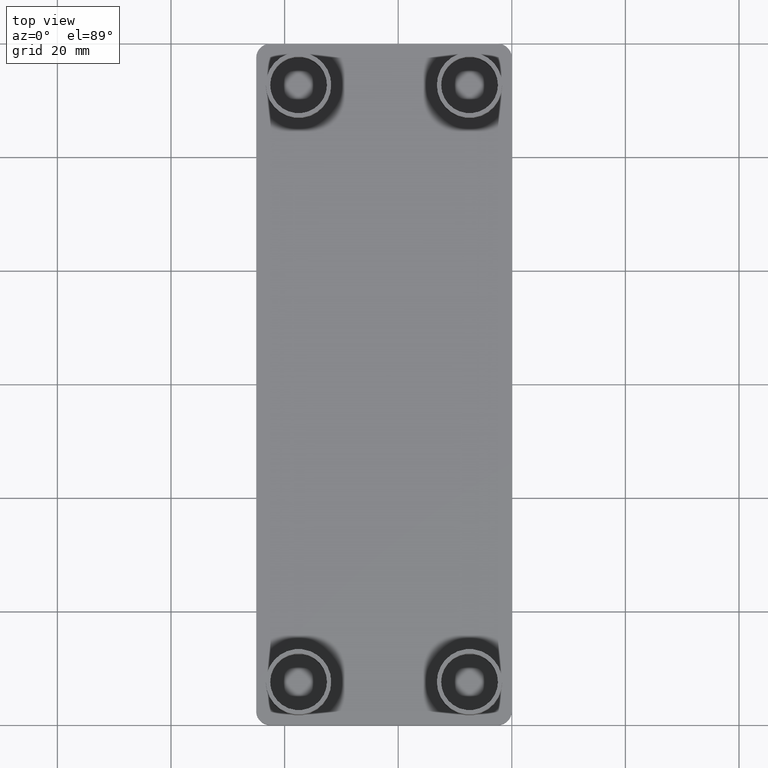
[diagram: clean part render]
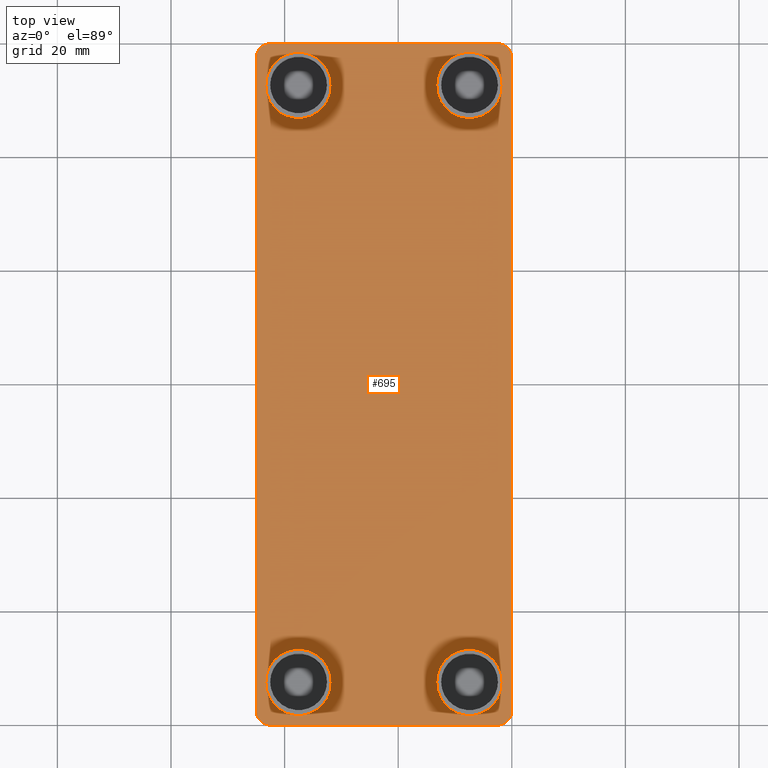
[diagram: same view with one face highlighted and labeled with its STEP entity id]
A machine part, top view. The second image highlights one B-rep face of the part: STEP entity #695.
In plain terms, the highlighted planar face has unit normal (0, 0, 1).
Its self-contained STEP definition (entity closure, byte-faithful):
#129=CARTESIAN_POINT('',(-31.800000666542019,52.550045499789803,0.0));
#130=VERTEX_POINT('',#129);
#137=CARTESIAN_POINT('',(-43.300000666495826,52.550045499789803,0.0));
#138=VERTEX_POINT('',#137);
#139=CARTESIAN_POINT('',(-37.550000666518827,52.550045499789803,0.0));
#140=DIRECTION('',(0.0,0.0,1.0));
#141=DIRECTION('',(1.0,0.0,0.0));
#142=AXIS2_PLACEMENT_3D('',#139,#140,#141);
#143=CIRCLE('',#142,5.749999999977001);
#144=EDGE_CURVE('',#130,#138,#143,.T.);
#146=CARTESIAN_POINT('',(-37.550000666518827,52.550045499789803,0.0));
#147=DIRECTION('',(0.0,0.0,1.0));
#148=DIRECTION('',(1.0,0.0,0.0));
#149=AXIS2_PLACEMENT_3D('',#146,#147,#148);
#150=CIRCLE('',#149,5.749999999977001);
#151=EDGE_CURVE('',#138,#130,#150,.T.);
#229=CARTESIAN_POINT('',(-1.700000666662618,52.550000499789803,0.0));
#230=VERTEX_POINT('',#229);
#237=CARTESIAN_POINT('',(-13.200000666616425,52.550000499789803,0.0));
#238=VERTEX_POINT('',#237);
#239=CARTESIAN_POINT('',(-7.450000666639426,52.550000499789803,0.0));
#240=DIRECTION('',(0.0,0.0,1.0));
#241=DIRECTION('',(1.0,0.0,0.0));
#242=AXIS2_PLACEMENT_3D('',#239,#240,#241);
#243=CIRCLE('',#242,5.749999999977001);
#244=EDGE_CURVE('',#230,#238,#243,.T.);
#246=CARTESIAN_POINT('',(-7.450000666639426,52.550000499789803,0.0));
#247=DIRECTION('',(0.0,0.0,1.0));
#248=DIRECTION('',(1.0,0.0,0.0));
#249=AXIS2_PLACEMENT_3D('',#246,#247,#248);
#250=CIRCLE('',#249,5.749999999977001);
#251=EDGE_CURVE('',#238,#230,#250,.T.);
#329=CARTESIAN_POINT('',(-31.799998999872514,-52.550044499789919,0.0));
#330=VERTEX_POINT('',#329);
#337=CARTESIAN_POINT('',(-43.299998999826322,-52.550044499789919,0.0));
#338=VERTEX_POINT('',#337);
#339=CARTESIAN_POINT('',(-37.549998999849322,-52.550044499789919,0.0));
#340=DIRECTION('',(0.0,0.0,1.0));
#341=DIRECTION('',(1.0,0.0,0.0));
#342=AXIS2_PLACEMENT_3D('',#339,#340,#341);
#343=CIRCLE('',#342,5.749999999977001);
#344=EDGE_CURVE('',#330,#338,#343,.T.);
#346=CARTESIAN_POINT('',(-37.549998999849322,-52.550044499789919,0.0));
#347=DIRECTION('',(0.0,0.0,1.0));
#348=DIRECTION('',(1.0,0.0,0.0));
#349=AXIS2_PLACEMENT_3D('',#346,#347,#348);
#350=CIRCLE('',#349,5.749999999977001);
#351=EDGE_CURVE('',#338,#330,#350,.T.);
#429=CARTESIAN_POINT('',(-1.699998999993113,-52.550044499789919,0.0));
#430=VERTEX_POINT('',#429);
#437=CARTESIAN_POINT('',(-13.199998999946921,-52.550044499789919,0.0));
#438=VERTEX_POINT('',#437);
#439=CARTESIAN_POINT('',(-7.449998999969921,-52.550044499789919,0.0));
#440=DIRECTION('',(0.0,0.0,1.0));
#441=DIRECTION('',(1.0,0.0,0.0));
#442=AXIS2_PLACEMENT_3D('',#439,#440,#441);
#443=CIRCLE('',#442,5.749999999977001);
#444=EDGE_CURVE('',#430,#438,#443,.T.);
#446=CARTESIAN_POINT('',(-7.449998999969921,-52.550044499789919,0.0));
#447=DIRECTION('',(0.0,0.0,1.0));
#448=DIRECTION('',(1.0,0.0,0.0));
#449=AXIS2_PLACEMENT_3D('',#446,#447,#448);
#450=CIRCLE('',#449,5.749999999977001);
#451=EDGE_CURVE('',#438,#430,#450,.T.);
#587=CARTESIAN_POINT('',(-44.999953999819809,57.500000499760063,0.0));
#588=VERTEX_POINT('',#587);
#589=CARTESIAN_POINT('',(-42.499953999819809,60.000000499760063,0.0));
#590=VERTEX_POINT('',#589);
#591=CARTESIAN_POINT('',(-42.499953999819809,57.500000499760063,0.0));
#592=DIRECTION('',(0.0,0.0,-1.0));
#593=DIRECTION('',(-1.0,0.0,0.0));
#594=AXIS2_PLACEMENT_3D('',#591,#592,#593);
#595=CIRCLE('',#594,2.500000000000000);
#596=EDGE_CURVE('',#588,#590,#595,.T.);
#614=CARTESIAN_POINT('',(-49.499975822407123,-72.000025978629537,0.0));
#615=DIRECTION('',(0.0,0.0,1.0));
#616=DIRECTION('',(1.0,0.0,0.0));
#617=AXIS2_PLACEMENT_3D('',#614,#615,#616);
#618=PLANE('',#617);
#619=CARTESIAN_POINT('',(-42.499953999819809,-60.000000499759835,0.0));
#620=VERTEX_POINT('',#619);
#621=CARTESIAN_POINT('',(-2.500000000000000,-60.000000499759835,0.0));
#622=VERTEX_POINT('',#621);
#623=CARTESIAN_POINT('',(-42.499953999819809,-60.000000499759835,0.0));
#624=DIRECTION('',(1.0,0.0,0.0));
#625=VECTOR('',#624,39.999953999819809);
#626=LINE('',#623,#625);
#627=EDGE_CURVE('',#620,#622,#626,.T.);
#628=ORIENTED_EDGE('',*,*,#627,.T.);
#629=CARTESIAN_POINT('',(0.0,-57.500000499759835,0.0));
#630=VERTEX_POINT('',#629);
#631=CARTESIAN_POINT('',(-2.500000000000000,-57.500000499759835,0.0));
#632=DIRECTION('',(0.0,0.0,-1.0));
#633=DIRECTION('',(1.0,0.0,0.0));
#634=AXIS2_PLACEMENT_3D('',#631,#632,#633);
#635=CIRCLE('',#634,2.500000000000000);
#636=EDGE_CURVE('',#630,#622,#635,.T.);
#637=ORIENTED_EDGE('',*,*,#636,.F.);
#638=CARTESIAN_POINT('',(0.0,57.500000499760063,0.0));
#639=VERTEX_POINT('',#638);
#640=CARTESIAN_POINT('',(0.0,-57.500000499759835,0.0));
#641=DIRECTION('',(0.0,1.0,0.0));
#642=VECTOR('',#641,115.000000999519900);
#643=LINE('',#640,#642);
#644=EDGE_CURVE('',#630,#639,#643,.T.);
#645=ORIENTED_EDGE('',*,*,#644,.T.);
#646=CARTESIAN_POINT('',(-2.500000000000000,60.000000499760063,0.0));
#647=VERTEX_POINT('',#646);
#648=CARTESIAN_POINT('',(-2.500000000000000,57.500000499760063,0.0));
#649=DIRECTION('',(0.0,0.0,-1.0));
#650=DIRECTION('',(0.0,1.0,0.0));
#651=AXIS2_PLACEMENT_3D('',#648,#649,#650);
#652=CIRCLE('',#651,2.500000000000000);
#653=EDGE_CURVE('',#647,#639,#652,.T.);
#654=ORIENTED_EDGE('',*,*,#653,.F.);
#655=CARTESIAN_POINT('',(-2.500000000000000,60.000000499760063,0.0));
#656=DIRECTION('',(-1.0,0.0,0.0));
#657=VECTOR('',#656,39.999953999819809);
#658=LINE('',#655,#657);
#659=EDGE_CURVE('',#647,#590,#658,.T.);
#660=ORIENTED_EDGE('',*,*,#659,.T.);
#661=ORIENTED_EDGE('',*,*,#596,.F.);
#662=CARTESIAN_POINT('',(-44.999953999819809,-57.500000499759835,0.0));
#663=VERTEX_POINT('',#662);
#664=CARTESIAN_POINT('',(-44.999953999819809,57.500000499760063,0.0));
#665=DIRECTION('',(0.0,-1.0,0.0));
#666=VECTOR('',#665,115.000000999519900);
#667=LINE('',#664,#666);
#668=EDGE_CURVE('',#588,#663,#667,.T.);
#669=ORIENTED_EDGE('',*,*,#668,.T.);
#670=CARTESIAN_POINT('',(-42.499953999819809,-57.500000499759835,0.0));
#671=DIRECTION('',(0.0,0.0,-1.0));
#672=DIRECTION('',(0.0,-1.0,0.0));
#673=AXIS2_PLACEMENT_3D('',#670,#671,#672);
#674=CIRCLE('',#673,2.500000000000000);
#675=EDGE_CURVE('',#620,#663,#674,.T.);
#676=ORIENTED_EDGE('',*,*,#675,.F.);
#677=EDGE_LOOP('',(#628,#637,#645,#654,#660,#661,#669,#676));
#678=FACE_OUTER_BOUND('',#677,.T.);
#679=ORIENTED_EDGE('',*,*,#151,.F.);
#680=ORIENTED_EDGE('',*,*,#144,.F.);
#681=EDGE_LOOP('',(#679,#680));
#682=FACE_BOUND('',#681,.T.);
#683=ORIENTED_EDGE('',*,*,#251,.F.);
#684=ORIENTED_EDGE('',*,*,#244,.F.);
#685=EDGE_LOOP('',(#683,#684));
#686=FACE_BOUND('',#685,.T.);
#687=ORIENTED_EDGE('',*,*,#351,.F.);
#688=ORIENTED_EDGE('',*,*,#344,.F.);
#689=EDGE_LOOP('',(#687,#688));
#690=FACE_BOUND('',#689,.T.);
#691=ORIENTED_EDGE('',*,*,#451,.F.);
#692=ORIENTED_EDGE('',*,*,#444,.F.);
#693=EDGE_LOOP('',(#691,#692));
#694=FACE_BOUND('',#693,.T.);
#695=ADVANCED_FACE('',(#678,#682,#686,#690,#694),#618,.T.);